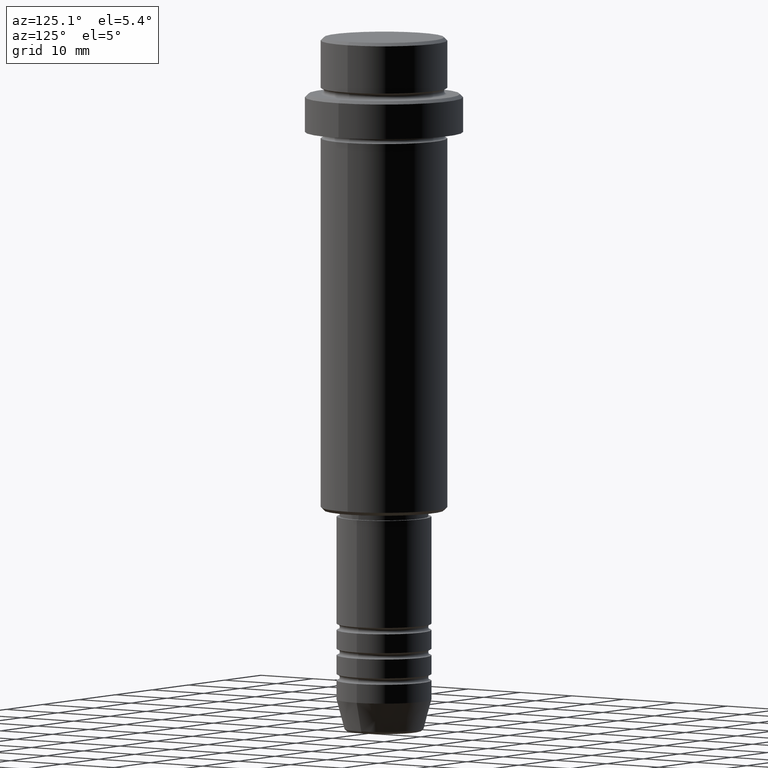
[diagram: clean part render]
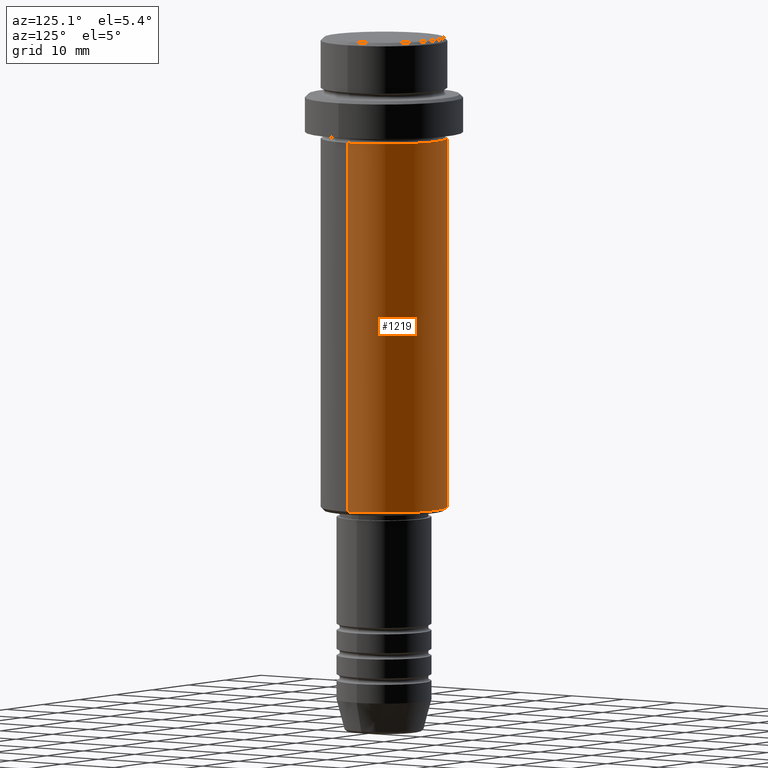
[diagram: same view with one face highlighted and labeled with its STEP entity id]
A machine part, auxiliary view. The second image highlights one B-rep face of the part: STEP entity #1219.
In plain terms, the highlighted cylindrical surface (partial cylindrical patch) has radius 10 mm, axis along (-0, -0, 1).
Its self-contained STEP definition (entity closure, byte-faithful):
#12 = CARTESIAN_POINT ( 'NONE',  ( -10.00000000000000000, 1.224646799147353256E-15, -74.50000000000000000 ) ) ;
#39 = EDGE_LOOP ( 'NONE', ( #798, #1249, #735, #172 ) ) ;
#73 = DIRECTION ( 'NONE',  ( -0.000000000000000000, -0.000000000000000000, 1.000000000000000000 ) ) ;
#111 = CARTESIAN_POINT ( 'NONE',  ( 10.00000000000000000, 0.000000000000000000, -16.00000000000000000 ) ) ;
#113 = CARTESIAN_POINT ( 'NONE',  ( -10.00000000000000000, 1.224646799147353256E-15, -16.00000000000000000 ) ) ;
#142 = EDGE_CURVE ( 'NONE', #1223, #773, #603, .T. ) ;
#156 = CARTESIAN_POINT ( 'NONE',  ( 10.00000000000000000, 0.000000000000000000, -74.50000000000000000 ) ) ;
#169 = VERTEX_POINT ( 'NONE', #12 ) ;
#172 = ORIENTED_EDGE ( 'NONE', *, *, #1181, .F. ) ;
#245 = DIRECTION ( 'NONE',  ( -0.000000000000000000, -0.000000000000000000, 1.000000000000000000 ) ) ;
#304 = AXIS2_PLACEMENT_3D ( 'NONE', #770, #662, #1222 ) ;
#352 = CARTESIAN_POINT ( 'NONE',  ( 10.00000000000000000, 0.000000000000000000, 0.000000000000000000 ) ) ;
#444 = VERTEX_POINT ( 'NONE', #156 ) ;
#467 = FACE_OUTER_BOUND ( 'NONE', #39, .T. ) ;
#489 = EDGE_CURVE ( 'NONE', #169, #773, #1255, .T. ) ;
#533 = VECTOR ( 'NONE', #245, 1000.000000000000000 ) ;
#553 = CYLINDRICAL_SURFACE ( 'NONE', #304, 10.00000000000000000 ) ;
#603 = CIRCLE ( 'NONE', #1403, 10.00000000000000000 ) ;
#623 = DIRECTION ( 'NONE',  ( -1.000000000000000000, 0.000000000000000000, 0.000000000000000000 ) ) ;
#662 = DIRECTION ( 'NONE',  ( -0.000000000000000000, -0.000000000000000000, 1.000000000000000000 ) ) ;
#667 = DIRECTION ( 'NONE',  ( 1.000000000000000000, 0.000000000000000000, 0.000000000000000000 ) ) ;
#735 = ORIENTED_EDGE ( 'NONE', *, *, #142, .F. ) ;
#770 = CARTESIAN_POINT ( 'NONE',  ( 0.000000000000000000, 0.000000000000000000, 0.000000000000000000 ) ) ;
#773 = VERTEX_POINT ( 'NONE', #113 ) ;
#793 = VECTOR ( 'NONE', #73, 1000.000000000000000 ) ;
#798 = ORIENTED_EDGE ( 'NONE', *, *, #1311, .T. ) ;
#943 = CARTESIAN_POINT ( 'NONE',  ( -10.00000000000000000, 1.224646799147353256E-15, 0.000000000000000000 ) ) ;
#951 = CIRCLE ( 'NONE', #1043, 10.00000000000000000 ) ;
#987 = CARTESIAN_POINT ( 'NONE',  ( 0.000000000000000000, 0.000000000000000000, -16.00000000000000000 ) ) ;
#1014 = LINE ( 'NONE', #352, #533 ) ;
#1043 = AXIS2_PLACEMENT_3D ( 'NONE', #1390, #1088, #623 ) ;
#1088 = DIRECTION ( 'NONE',  ( -0.000000000000000000, -0.000000000000000000, 1.000000000000000000 ) ) ;
#1181 = EDGE_CURVE ( 'NONE', #444, #1223, #1014, .T. ) ;
#1212 = DIRECTION ( 'NONE',  ( -0.000000000000000000, -0.000000000000000000, 1.000000000000000000 ) ) ;
#1219 = ADVANCED_FACE ( 'NONE', ( #467 ), #553, .T. ) ;
#1222 = DIRECTION ( 'NONE',  ( 1.000000000000000000, 0.000000000000000000, 0.000000000000000000 ) ) ;
#1223 = VERTEX_POINT ( 'NONE', #111 ) ;
#1249 = ORIENTED_EDGE ( 'NONE', *, *, #489, .T. ) ;
#1255 = LINE ( 'NONE', #943, #793 ) ;
#1311 = EDGE_CURVE ( 'NONE', #444, #169, #951, .T. ) ;
#1390 = CARTESIAN_POINT ( 'NONE',  ( 0.000000000000000000, 0.000000000000000000, -74.50000000000000000 ) ) ;
#1403 = AXIS2_PLACEMENT_3D ( 'NONE', #987, #1212, #667 ) ;